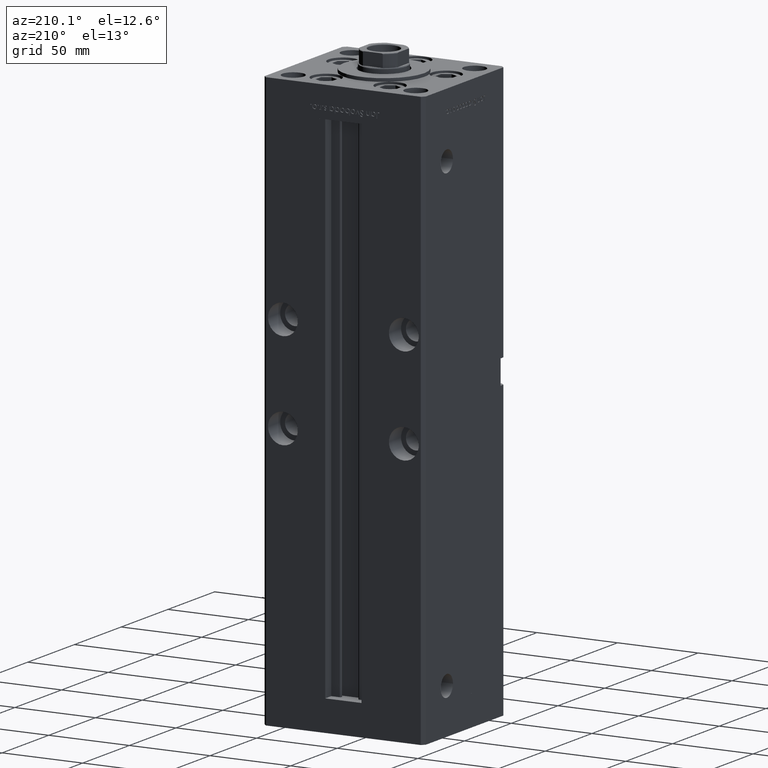
[diagram: clean part render]
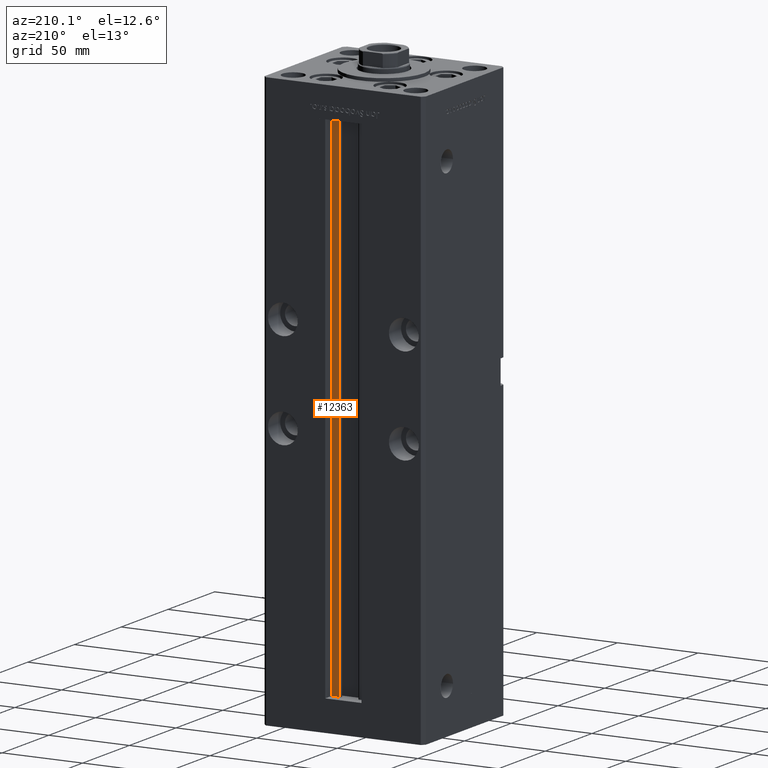
[diagram: same view with one face highlighted and labeled with its STEP entity id]
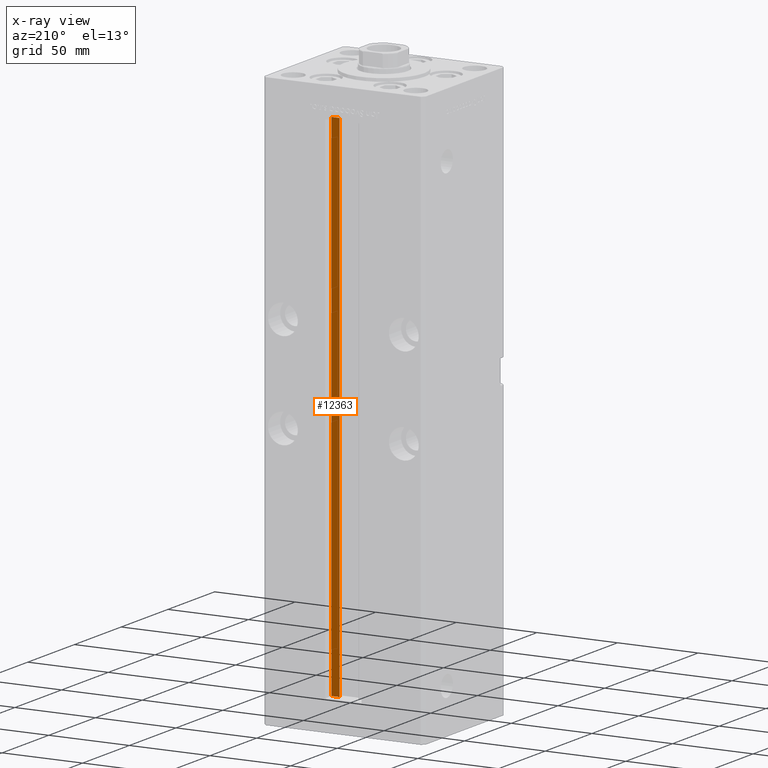
[diagram: x-ray of the same camera — body ghosted, the highlighted face saturated]
A machine part, auxiliary view. The second image highlights one B-rep face of the part: STEP entity #12363.
The next image is the same camera in x-ray: the body ghosted, the highlighted face saturated — about 0% of this face is hidden behind the body in this view.
In plain terms, the highlighted planar face has unit normal (0, -1, 0).
Its self-contained STEP definition (entity closure, byte-faithful):
#4488 = EDGE_CURVE ( 'NONE', #19695, #28227, #32607, .T. ) ;
#4664 = EDGE_CURVE ( 'NONE', #38151, #28227, #22913, .T. ) ;
#7122 = DIRECTION ( 'NONE',  ( -0.000000000000000000, -0.000000000000000000, 1.000000000000000000 ) ) ;
#7836 = CARTESIAN_POINT ( 'NONE',  ( 6.183333333333996151, 37.00000000000000000, 0.000000000000000000 ) ) ;
#7917 = CARTESIAN_POINT ( 'NONE',  ( 6.183333333333996151, 37.00000000000000000, 0.000000000000000000 ) ) ;
#10370 = EDGE_LOOP ( 'NONE', ( #11934, #32236, #29890, #10890 ) ) ;
#10737 = EDGE_CURVE ( 'NONE', #45123, #38151, #32336, .T. ) ;
#10890 = ORIENTED_EDGE ( 'NONE', *, *, #4664, .F. ) ;
#11934 = ORIENTED_EDGE ( 'NONE', *, *, #10737, .F. ) ;
#12363 = ADVANCED_FACE ( 'NONE', ( #23429 ), #36034, .F. ) ;
#14028 = LINE ( 'NONE', #17530, #43878 ) ;
#17530 = CARTESIAN_POINT ( 'NONE',  ( 6.183333333333996151, 37.00000000000000000, 0.000000000000000000 ) ) ;
#19403 = DIRECTION ( 'NONE',  ( 0.000000000000000000, -1.000000000000000000, 0.000000000000000000 ) ) ;
#19593 = VECTOR ( 'NONE', #19738, 1000.000000000000000 ) ;
#19695 = VERTEX_POINT ( 'NONE', #27831 ) ;
#19738 = DIRECTION ( 'NONE',  ( -0.000000000000000000, -0.000000000000000000, 1.000000000000000000 ) ) ;
#22913 = LINE ( 'NONE', #51937, #26459 ) ;
#23151 = EDGE_CURVE ( 'NONE', #19695, #45123, #14028, .T. ) ;
#23429 = FACE_OUTER_BOUND ( 'NONE', #10370, .T. ) ;
#26459 = VECTOR ( 'NONE', #42550, 1000.000000000000000 ) ;
#27831 = CARTESIAN_POINT ( 'NONE',  ( 6.183333333333996151, 37.00000000000000000, 0.000000000000000000 ) ) ;
#28227 = VERTEX_POINT ( 'NONE', #31954 ) ;
#29890 = ORIENTED_EDGE ( 'NONE', *, *, #4488, .T. ) ;
#30812 = VECTOR ( 'NONE', #7122, 1000.000000000000000 ) ;
#31954 = CARTESIAN_POINT ( 'NONE',  ( 6.183333333333996151, 37.00000000000000000, 318.5000000000000000 ) ) ;
#32236 = ORIENTED_EDGE ( 'NONE', *, *, #23151, .F. ) ;
#32336 = LINE ( 'NONE', #44697, #30812 ) ;
#32607 = LINE ( 'NONE', #7917, #19593 ) ;
#33893 = DIRECTION ( 'NONE',  ( 1.000000000000000000, 0.000000000000000000, 0.000000000000000000 ) ) ;
#36034 = PLANE ( 'NONE',  #51461 ) ;
#38151 = VERTEX_POINT ( 'NONE', #41933 ) ;
#41933 = CARTESIAN_POINT ( 'NONE',  ( 11.24999999999999645, 37.00000000000000000, 318.5000000000000000 ) ) ;
#42550 = DIRECTION ( 'NONE',  ( -1.000000000000000000, 0.000000000000000000, 0.000000000000000000 ) ) ;
#43878 = VECTOR ( 'NONE', #33893, 1000.000000000000000 ) ;
#44105 = DIRECTION ( 'NONE',  ( 0.000000000000000000, -0.000000000000000000, -1.000000000000000000 ) ) ;
#44697 = CARTESIAN_POINT ( 'NONE',  ( 11.24999999999999645, 37.00000000000000000, 0.000000000000000000 ) ) ;
#45123 = VERTEX_POINT ( 'NONE', #47976 ) ;
#47976 = CARTESIAN_POINT ( 'NONE',  ( 11.24999999999999645, 37.00000000000000000, 0.000000000000000000 ) ) ;
#51461 = AXIS2_PLACEMENT_3D ( 'NONE', #7836, #19403, #44105 ) ;
#51937 = CARTESIAN_POINT ( 'NONE',  ( 0.000000000000000000, 37.00000000000000000, 318.5000000000000000 ) ) ;